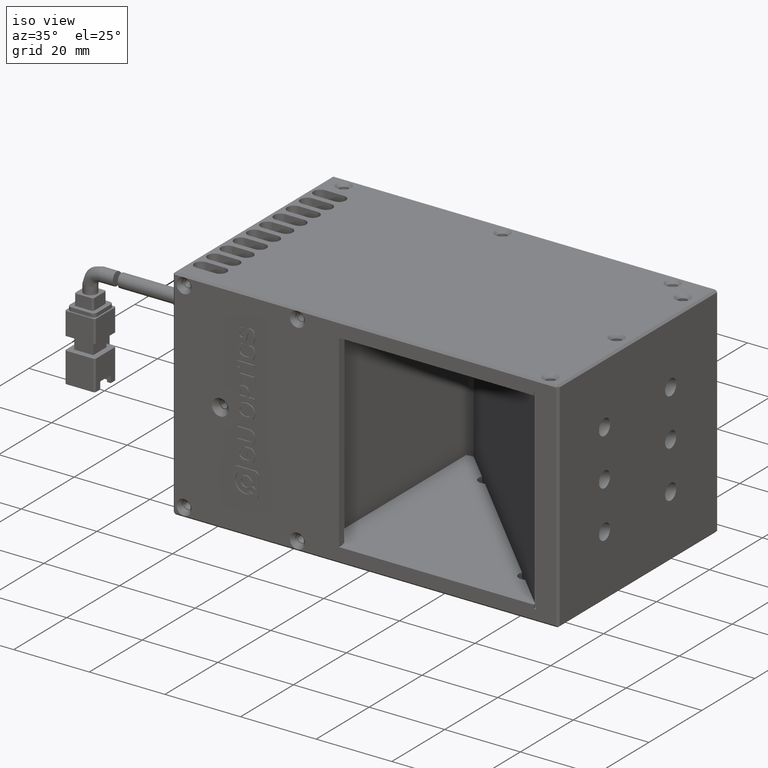
[diagram: clean part render]
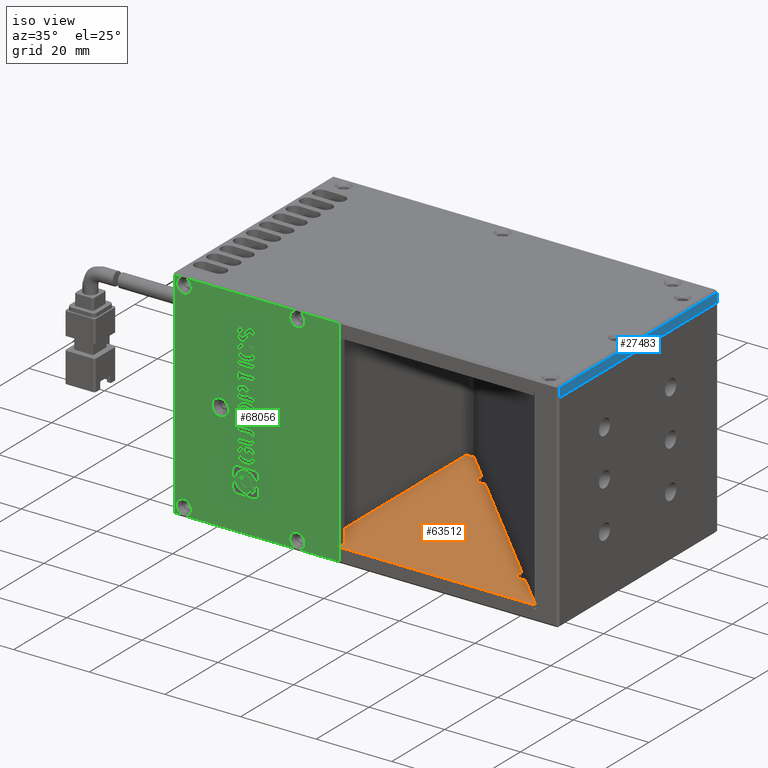
[diagram: same view with three faces highlighted in distinct colors, each labeled with its STEP entity id]
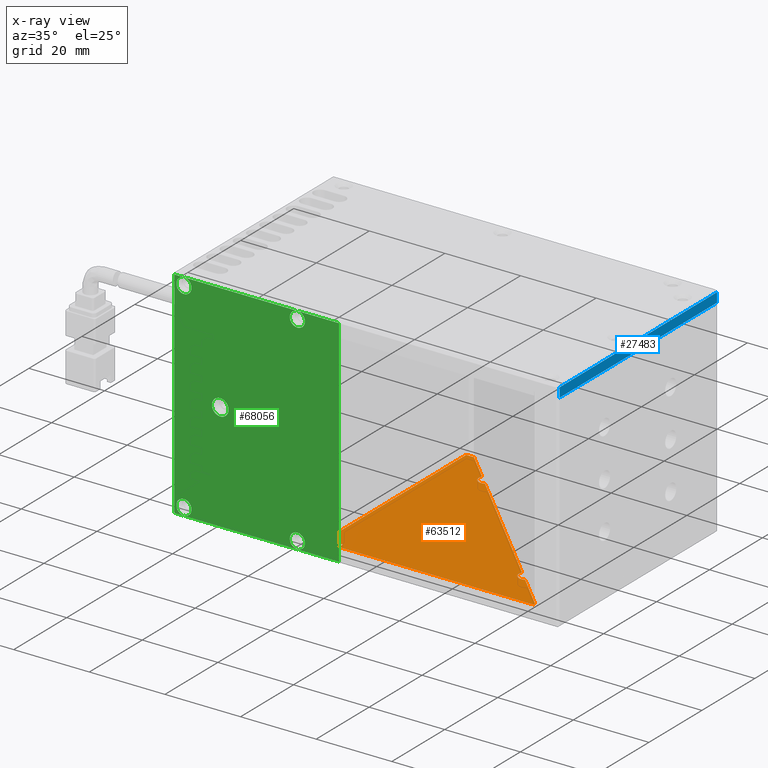
[diagram: x-ray of the same camera — body ghosted, the three highlighted faces saturated]
A machine part, iso view with three faces highlighted in distinct colors.
The next image is the same camera in x-ray (body ghosted, the three faces saturated) — at least one of them is partly hidden behind the body in this view.
Their STEP definitions:

[orange] entity #63512 — the highlighted planar face has unit normal (0, -0, 1).
#81 = CARTESIAN_POINT ( 'NONE',  ( -18.15268731930642300, 38.81505083406882100, 4.000000000009549700 ) ) ;
#1310 = CARTESIAN_POINT ( 'NONE',  ( -24.57424922391152200, -6.223006669097354200, 4.000000000009549700 ) ) ;
#1754 = VECTOR ( 'NONE', #23965, 1000.000000000000000 ) ;
#2324 = CARTESIAN_POINT ( 'NONE',  ( 18.08047391975925000, 1.662650779460662600, 4.000000000009549700 ) ) ;
#3220 = CIRCLE ( 'NONE', #67709, 2.000000000000001800 ) ;
#3385 = ORIENTED_EDGE ( 'NONE', *, *, #8513, .T. ) ;
#3423 = LINE ( 'NONE', #18607, #1754 ) ;
#3480 = EDGE_CURVE ( 'NONE', #45093, #49068, #64363, .T. ) ;
#3933 = AXIS2_PLACEMENT_3D ( 'NONE', #15642, #52663, #21034 ) ;
#4162 = VECTOR ( 'NONE', #27052, 1000.000000000000000 ) ;
#4756 = CARTESIAN_POINT ( 'NONE',  ( 15.20265174002096100, 3.459711774741443900, 4.000000000009549700 ) ) ;
#5496 = DIRECTION ( 'NONE',  ( 1.000000000000000000, 6.938893903907222100E-015, 0.0000000000000000000 ) ) ;
#6100 = LINE ( 'NONE', #45755, #48351 ) ;
#6648 = ORIENTED_EDGE ( 'NONE', *, *, #51875, .T. ) ;
#6997 = VERTEX_POINT ( 'NONE', #53465 ) ;
#8211 = VERTEX_POINT ( 'NONE', #1310 ) ;
#8252 = DIRECTION ( 'NONE',  ( 0.0000000000000000000, 0.0000000000000000000, -1.000000000000000000 ) ) ;
#8513 = EDGE_CURVE ( 'NONE', #36693, #27778, #46453, .T. ) ;
#8966 = LINE ( 'NONE', #21065, #24799 ) ;
#10519 = DIRECTION ( 'NONE',  ( -0.7071067811865454600, 0.7071067811865496800, 0.0000000000000000000 ) ) ;
#14923 = ORIENTED_EDGE ( 'NONE', *, *, #50053, .T. ) ;
#15133 = VERTEX_POINT ( 'NONE', #65577 ) ;
#15642 = CARTESIAN_POINT ( 'NONE',  ( -18.15268731930642300, 38.81505083406882100, 4.000000000009549700 ) ) ;
#16168 = ORIENTED_EDGE ( 'NONE', *, *, #23784, .T. ) ;
#16613 = CARTESIAN_POINT ( 'NONE',  ( -24.57424922391152200, -7.723006669097355100, 4.000000000009549700 ) ) ;
#16927 = EDGE_LOOP ( 'NONE', ( #16168, #6648, #53080, #53734, #57910, #35306, #27091, #49482, #19044, #37279, #14923, #24170, #3385 ) ) ;
#18607 = CARTESIAN_POINT ( 'NONE',  ( 33.42575077608847800, -7.723006669097348000, 4.000000000009549700 ) ) ;
#18696 = PLANE ( 'NONE',  #56542 ) ;
#18940 = DIRECTION ( 'NONE',  ( 0.0000000000000000000, -0.0000000000000000000, 1.000000000000000000 ) ) ;
#19044 = ORIENTED_EDGE ( 'NONE', *, *, #49851, .T. ) ;
#19957 = VERTEX_POINT ( 'NONE', #39969 ) ;
#20174 = LINE ( 'NONE', #36931, #34251 ) ;
#20233 = LINE ( 'NONE', #34900, #60760 ) ;
#20976 = AXIS2_PLACEMENT_3D ( 'NONE', #23070, #60029, #28334 ) ;
#21034 = DIRECTION ( 'NONE',  ( 1.000000000000000000, 0.0000000000000000000, 0.0000000000000000000 ) ) ;
#21065 = CARTESIAN_POINT ( 'NONE',  ( 33.42575077608847800, 46.77599333090265100, 4.000000000009549700 ) ) ;
#21727 = CARTESIAN_POINT ( 'NONE',  ( 26.92575077608848500, 52.77699333090263400, 4.000000000009549700 ) ) ;
#22184 = VERTEX_POINT ( 'NONE', #38707 ) ;
#23070 = CARTESIAN_POINT ( 'NONE',  ( 17.20265174002096100, 3.459711774741443400, 4.000000000009549700 ) ) ;
#23781 = VECTOR ( 'NONE', #55002, 1000.000000000000000 ) ;
#23784 = EDGE_CURVE ( 'NONE', #27778, #51965, #25433, .T. ) ;
#23965 = DIRECTION ( 'NONE',  ( 1.000000000000000000, 1.224646799147353500E-016, -0.0000000000000000000 ) ) ;
#24170 = ORIENTED_EDGE ( 'NONE', *, *, #62632, .T. ) ;
#24799 = VECTOR ( 'NONE', #37004, 1000.000000000000000 ) ;
#25433 = LINE ( 'NONE', #39062, #23781 ) ;
#25677 = AXIS2_PLACEMENT_3D ( 'NONE', #39988, #8252, #45302 ) ;
#27052 = DIRECTION ( 'NONE',  ( 0.0000000000000000000, 1.000000000000000000, 0.0000000000000000000 ) ) ;
#27091 = ORIENTED_EDGE ( 'NONE', *, *, #43271, .T. ) ;
#27778 = VERTEX_POINT ( 'NONE', #58133 ) ;
#28334 = DIRECTION ( 'NONE',  ( 1.000000000000000000, 0.0000000000000000000, 0.0000000000000000000 ) ) ;
#28382 = FACE_OUTER_BOUND ( 'NONE', #16927, .T. ) ;
#30027 = DIRECTION ( 'NONE',  ( -0.0000000000000000000, -1.000000000000000000, -0.0000000000000000000 ) ) ;
#30513 = CARTESIAN_POINT ( 'NONE',  ( -79.77142641557888700, -6.223006669097361300, 4.000000000009549700 ) ) ;
#31451 = EDGE_CURVE ( 'NONE', #40228, #19957, #8966, .T. ) ;
#34251 = VECTOR ( 'NONE', #68600, 1000.000000000000000 ) ;
#34900 = CARTESIAN_POINT ( 'NONE',  ( 15.40559074474019700, 4.337533954479746400, 4.000000000009549700 ) ) ;
#35003 = LINE ( 'NONE', #30513, #45753 ) ;
#35079 = CARTESIAN_POINT ( 'NONE',  ( -29.07424922391151900, -6.223006669097353300, 4.000000000009549700 ) ) ;
#35306 = ORIENTED_EDGE ( 'NONE', *, *, #64150, .T. ) ;
#35888 = EDGE_CURVE ( 'NONE', #15133, #22184, #38446, .T. ) ;
#36219 = CIRCLE ( 'NONE', #20976, 2.000000000000001800 ) ;
#36242 = VERTEX_POINT ( 'NONE', #35079 ) ;
#36693 = VERTEX_POINT ( 'NONE', #50235 ) ;
#36931 = CARTESIAN_POINT ( 'NONE',  ( -24.57424922391152200, 52.77699333090263400, 4.000000000009549700 ) ) ;
#37004 = DIRECTION ( 'NONE',  ( -1.000000000000000000, -0.0000000000000000000, 0.0000000000000000000 ) ) ;
#37251 = DIRECTION ( 'NONE',  ( 0.0000000000000000000, 0.0000000000000000000, -1.000000000000000000 ) ) ;
#37279 = ORIENTED_EDGE ( 'NONE', *, *, #67605, .F. ) ;
#38446 = CIRCLE ( 'NONE', #3933, 2.000000000000001800 ) ;
#38707 = CARTESIAN_POINT ( 'NONE',  ( -20.15268731930642300, 38.81505083406882100, 4.000000000009549700 ) ) ;
#39062 = CARTESIAN_POINT ( 'NONE',  ( 26.92575077608849200, -7.182626076868644700, 4.000000000009549700 ) ) ;
#39825 = CARTESIAN_POINT ( 'NONE',  ( -27.03286863168244400, 46.77599333090265100, 4.000000000009549700 ) ) ;
#39969 = CARTESIAN_POINT ( 'NONE',  ( -29.07424922391152600, 46.77599333090264400, 4.000000000009549700 ) ) ;
#39988 = CARTESIAN_POINT ( 'NONE',  ( 17.20265174002096100, 3.459711774741443400, 4.000000000009549700 ) ) ;
#40228 = VERTEX_POINT ( 'NONE', #39825 ) ;
#41425 = VERTEX_POINT ( 'NONE', #16613 ) ;
#42257 = CARTESIAN_POINT ( 'NONE',  ( -19.94974831458710400, 39.69287301380727900, 4.000000000009549700 ) ) ;
#43271 = EDGE_CURVE ( 'NONE', #6997, #40228, #63548, .T. ) ;
#45093 = VERTEX_POINT ( 'NONE', #4756 ) ;
#45302 = DIRECTION ( 'NONE',  ( 1.000000000000000000, 3.469446951953611000E-015, 0.0000000000000000000 ) ) ;
#45753 = VECTOR ( 'NONE', #67485, 1000.000000000000000 ) ;
#45755 = CARTESIAN_POINT ( 'NONE',  ( -29.07424922391152600, 52.77699333090263400, 4.000000000009549700 ) ) ;
#46453 = LINE ( 'NONE', #21727, #4162 ) ;
#48351 = VECTOR ( 'NONE', #30027, 1000.000000000000000 ) ;
#49068 = VERTEX_POINT ( 'NONE', #60847 ) ;
#49482 = ORIENTED_EDGE ( 'NONE', *, *, #31451, .T. ) ;
#49850 = EDGE_CURVE ( 'NONE', #49068, #15133, #20233, .T. ) ;
#49851 = EDGE_CURVE ( 'NONE', #19957, #36242, #6100, .T. ) ;
#50053 = EDGE_CURVE ( 'NONE', #8211, #41425, #20174, .T. ) ;
#50235 = CARTESIAN_POINT ( 'NONE',  ( 26.92575077608848500, -7.723006669097355100, 4.000000000009549700 ) ) ;
#50573 = CARTESIAN_POINT ( 'NONE',  ( 33.42575077608847800, 52.77699333090263400, 4.000000000009549700 ) ) ;
#51875 = EDGE_CURVE ( 'NONE', #51965, #45093, #36219, .T. ) ;
#51965 = VERTEX_POINT ( 'NONE', #2324 ) ;
#52663 = DIRECTION ( 'NONE',  ( 0.0000000000000000000, 0.0000000000000000000, -1.000000000000000000 ) ) ;
#53080 = ORIENTED_EDGE ( 'NONE', *, *, #3480, .T. ) ;
#53465 = CARTESIAN_POINT ( 'NONE',  ( -19.94974831458710800, 39.69287301380727900, 4.000000000009549700 ) ) ;
#53734 = ORIENTED_EDGE ( 'NONE', *, *, #49850, .T. ) ;
#55002 = DIRECTION ( 'NONE',  ( -0.7071067811865444600, 0.7071067811865505700, 0.0000000000000000000 ) ) ;
#55894 = DIRECTION ( 'NONE',  ( 1.000000000000000000, 0.0000000000000000000, -0.0000000000000000000 ) ) ;
#56344 = DIRECTION ( 'NONE',  ( -0.7071067811865452400, 0.7071067811865499000, 0.0000000000000000000 ) ) ;
#56542 = AXIS2_PLACEMENT_3D ( 'NONE', #50573, #18940, #55894 ) ;
#57910 = ORIENTED_EDGE ( 'NONE', *, *, #35888, .T. ) ;
#58133 = CARTESIAN_POINT ( 'NONE',  ( 26.92575077608848500, -7.182626076868646500, 4.000000000009549700 ) ) ;
#60029 = DIRECTION ( 'NONE',  ( 0.0000000000000000000, 0.0000000000000000000, -1.000000000000000000 ) ) ;
#60760 = VECTOR ( 'NONE', #56344, 1000.000000000000100 ) ;
#60847 = CARTESIAN_POINT ( 'NONE',  ( 15.40559074474020000, 4.337533954479732200, 4.000000000009549700 ) ) ;
#61917 = VECTOR ( 'NONE', #10519, 1000.000000000000100 ) ;
#62632 = EDGE_CURVE ( 'NONE', #41425, #36693, #3423, .T. ) ;
#63512 = ADVANCED_FACE ( 'NONE', ( #28382 ), #18696, .T. ) ;
#63548 = LINE ( 'NONE', #42257, #61917 ) ;
#64150 = EDGE_CURVE ( 'NONE', #22184, #6997, #3220, .T. ) ;
#64363 = CIRCLE ( 'NONE', #25677, 2.000000000000001800 ) ;
#65577 = CARTESIAN_POINT ( 'NONE',  ( -17.27486513956796800, 37.01798983878812500, 4.000000000009549700 ) ) ;
#67485 = DIRECTION ( 'NONE',  ( -1.000000000000000000, -1.224646799147353200E-016, -0.0000000000000000000 ) ) ;
#67605 = EDGE_CURVE ( 'NONE', #8211, #36242, #35003, .T. ) ;
#67709 = AXIS2_PLACEMENT_3D ( 'NONE', #81, #37251, #5496 ) ;
#68600 = DIRECTION ( 'NONE',  ( -0.0000000000000000000, -1.000000000000000000, -0.0000000000000000000 ) ) ;

[blue] entity #27483 — the highlighted planar face has unit normal (-1, 0, 0).
#2129 = PLANE ( 'NONE',  #56341 ) ;
#2366 = DIRECTION ( 'NONE',  ( -1.000000000000000000, 0.0000000000000000000, 0.0000000000000000000 ) ) ;
#2547 = CARTESIAN_POINT ( 'NONE',  ( 33.42575077608847800, 52.27699333090263400, 54.00000000000955700 ) ) ;
#2601 = CARTESIAN_POINT ( 'NONE',  ( 33.42575077608847800, -7.723006669097348000, 57.50000000000955700 ) ) ;
#5379 = EDGE_CURVE ( 'NONE', #32669, #42572, #41406, .T. ) ;
#5518 = LINE ( 'NONE', #33296, #32057 ) ;
#7904 = DIRECTION ( 'NONE',  ( -0.0000000000000000000, -0.0000000000000000000, -1.000000000000000000 ) ) ;
#14753 = VERTEX_POINT ( 'NONE', #47419 ) ;
#15292 = VERTEX_POINT ( 'NONE', #51429 ) ;
#19498 = CARTESIAN_POINT ( 'NONE',  ( 33.42575077608847800, -7.223006669097347100, 57.50000000000955700 ) ) ;
#24405 = EDGE_CURVE ( 'NONE', #32669, #15292, #43484, .T. ) ;
#24551 = FACE_OUTER_BOUND ( 'NONE', #40802, .T. ) ;
#25881 = CARTESIAN_POINT ( 'NONE',  ( 33.42575077608847800, -7.723006669097348000, 55.00000000000955700 ) ) ;
#27265 = EDGE_CURVE ( 'NONE', #15292, #14753, #38208, .T. ) ;
#27483 = ADVANCED_FACE ( 'NONE', ( #24551 ), #2129, .F. ) ;
#31254 = ORIENTED_EDGE ( 'NONE', *, *, #24405, .F. ) ;
#31726 = ORIENTED_EDGE ( 'NONE', *, *, #5379, .T. ) ;
#32057 = VECTOR ( 'NONE', #54069, 1000.000000000000000 ) ;
#32669 = VERTEX_POINT ( 'NONE', #63035 ) ;
#33296 = CARTESIAN_POINT ( 'NONE',  ( 33.42575077608847800, -7.223006669097346200, 54.00000000000955700 ) ) ;
#34174 = CARTESIAN_POINT ( 'NONE',  ( 33.42575077608847800, -7.723006669097348000, 54.00000000000955700 ) ) ;
#38208 = LINE ( 'NONE', #25881, #62979 ) ;
#39473 = DIRECTION ( 'NONE',  ( 0.0000000000000000000, 0.0000000000000000000, 1.000000000000000000 ) ) ;
#39933 = DIRECTION ( 'NONE',  ( -0.0000000000000000000, -1.000000000000000000, -0.0000000000000000000 ) ) ;
#40802 = EDGE_LOOP ( 'NONE', ( #31254, #31726, #66640, #52112 ) ) ;
#41406 = LINE ( 'NONE', #2601, #52144 ) ;
#41768 = DIRECTION ( 'NONE',  ( -0.0000000000000000000, -1.000000000000000000, 0.0000000000000000000 ) ) ;
#41839 = VECTOR ( 'NONE', #7904, 1000.000000000000000 ) ;
#42572 = VERTEX_POINT ( 'NONE', #19498 ) ;
#43484 = LINE ( 'NONE', #2547, #41839 ) ;
#47419 = CARTESIAN_POINT ( 'NONE',  ( 33.42575077608847800, -7.223006669097347100, 55.00000000000955700 ) ) ;
#51429 = CARTESIAN_POINT ( 'NONE',  ( 33.42575077608847800, 52.27699333090263400, 55.00000000000955700 ) ) ;
#52112 = ORIENTED_EDGE ( 'NONE', *, *, #27265, .F. ) ;
#52144 = VECTOR ( 'NONE', #39933, 1000.000000000000000 ) ;
#54069 = DIRECTION ( 'NONE',  ( 0.0000000000000000000, 0.0000000000000000000, 1.000000000000000000 ) ) ;
#56341 = AXIS2_PLACEMENT_3D ( 'NONE', #34174, #2366, #39473 ) ;
#62979 = VECTOR ( 'NONE', #41768, 1000.000000000000000 ) ;
#63035 = CARTESIAN_POINT ( 'NONE',  ( 33.42575077608847800, 52.27699333090264800, 57.50000000000955700 ) ) ;
#66078 = EDGE_CURVE ( 'NONE', #14753, #42572, #5518, .T. ) ;
#66640 = ORIENTED_EDGE ( 'NONE', *, *, #66078, .F. ) ;

[green] entity #68056 — the highlighted planar face has unit normal (0, -1, 0).
#63 = VERTEX_POINT ( 'NONE', #24220 ) ;
#636 = EDGE_LOOP ( 'NONE', ( #18166, #43907 ) ) ;
#683 = CARTESIAN_POINT ( 'NONE',  ( -24.57424922391151200, -7.723006669097353300, 58.00000000000954300 ) ) ;
#1084 = DIRECTION ( 'NONE',  ( -1.196391117533724800E-016, 1.000000000000000000, -2.687133370730801500E-017 ) ) ;
#1331 = VERTEX_POINT ( 'NONE', #20501 ) ;
#2772 = CIRCLE ( 'NONE', #55978, 1.999999999975299300 ) ;
#3605 = CIRCLE ( 'NONE', #6993, 1.999999999972572400 ) ;
#3709 = CARTESIAN_POINT ( 'NONE',  ( -68.07424922391152200, -7.723006669097358700, 58.00000000000955000 ) ) ;
#5285 = CIRCLE ( 'NONE', #33441, 1.999999999975299300 ) ;
#5864 = EDGE_CURVE ( 'NONE', #53723, #11119, #48792, .T. ) ;
#5961 = EDGE_CURVE ( 'NONE', #12346, #58297, #28085, .T. ) ;
#5970 = ORIENTED_EDGE ( 'NONE', *, *, #22068, .T. ) ;
#6993 = AXIS2_PLACEMENT_3D ( 'NONE', #23429, #60388, #28665 ) ;
#7460 = FACE_OUTER_BOUND ( 'NONE', #41204, .T. ) ;
#8412 = PLANE ( 'NONE',  #21147 ) ;
#8602 = CARTESIAN_POINT ( 'NONE',  ( -35.57424922391150100, -7.723006669163748200, 55.50000000000954300 ) ) ;
#8833 = DIRECTION ( 'NONE',  ( -7.632783294297951200E-017, -2.687133370730802500E-017, -1.000000000000000000 ) ) ;
#9068 = CARTESIAN_POINT ( 'NONE',  ( -35.57424922391150800, -7.723006669106906600, 0.5000000000342439400 ) ) ;
#9114 = FACE_BOUND ( 'NONE', #44595, .T. ) ;
#10331 = EDGE_CURVE ( 'NONE', #58297, #12346, #60715, .T. ) ;
#10408 = ORIENTED_EDGE ( 'NONE', *, *, #52278, .T. ) ;
#10994 = EDGE_CURVE ( 'NONE', #63, #47165, #40912, .T. ) ;
#11119 = VERTEX_POINT ( 'NONE', #14196 ) ;
#11759 = VECTOR ( 'NONE', #19442, 1000.000000000000000 ) ;
#12227 = DIRECTION ( 'NONE',  ( -1.196391117533724800E-016, 1.000000000000000000, -2.687133370730801500E-017 ) ) ;
#12346 = VERTEX_POINT ( 'NONE', #9068 ) ;
#12525 = ORIENTED_EDGE ( 'NONE', *, *, #52379, .T. ) ;
#12980 = CIRCLE ( 'NONE', #47798, 1.999999999972572400 ) ;
#13051 = CARTESIAN_POINT ( 'NONE',  ( -35.57424922391150100, -7.723006669163748200, 55.50000000000954300 ) ) ;
#13283 = DIRECTION ( 'NONE',  ( -1.196391117533724800E-016, 1.000000000000000000, -2.687133370730801500E-017 ) ) ;
#13915 = DIRECTION ( 'NONE',  ( 0.0000000000000000000, 0.0000000000000000000, 1.000000000000000000 ) ) ;
#13925 = EDGE_CURVE ( 'NONE', #47165, #63, #60782, .T. ) ;
#13945 = CARTESIAN_POINT ( 'NONE',  ( -68.57424922391150800, -7.723006669097358700, 58.00000000000955000 ) ) ;
#13988 = EDGE_CURVE ( 'NONE', #61561, #53723, #16871, .T. ) ;
#14196 = CARTESIAN_POINT ( 'NONE',  ( -24.57424922391151500, -7.723006669097355100, 0.5000000000095344800 ) ) ;
#14584 = ORIENTED_EDGE ( 'NONE', *, *, #5864, .T. ) ;
#14974 = ORIENTED_EDGE ( 'NONE', *, *, #13988, .T. ) ;
#15063 = AXIS2_PLACEMENT_3D ( 'NONE', #59444, #27735, #64737 ) ;
#16871 = LINE ( 'NONE', #3709, #30975 ) ;
#16914 = VERTEX_POINT ( 'NONE', #57903 ) ;
#18166 = ORIENTED_EDGE ( 'NONE', *, *, #10994, .T. ) ;
#18442 = DIRECTION ( 'NONE',  ( 0.0000000000000000000, 0.0000000000000000000, 1.000000000000000000 ) ) ;
#19364 = DIRECTION ( 'NONE',  ( 7.632783294297951200E-017, 2.687133370730802500E-017, 1.000000000000000000 ) ) ;
#19442 = DIRECTION ( 'NONE',  ( -1.000000000000000000, -1.196391117533724800E-016, 7.632783294297951200E-017 ) ) ;
#19771 = CARTESIAN_POINT ( 'NONE',  ( -55.97424922391153500, -7.723006669050064900, 29.00000000000953500 ) ) ;
#19865 = CARTESIAN_POINT ( 'NONE',  ( -65.57424922391152200, -7.723006669106910100, 0.5000000000342508200 ) ) ;
#20420 = CARTESIAN_POINT ( 'NONE',  ( -55.97424922391153500, -7.723006669050064900, 31.19999999993327900 ) ) ;
#20501 = CARTESIAN_POINT ( 'NONE',  ( -55.97424922391153500, -7.723006669050064900, 26.80000000008579200 ) ) ;
#21147 = AXIS2_PLACEMENT_3D ( 'NONE', #13945, #50992, #19364 ) ;
#21601 = CARTESIAN_POINT ( 'NONE',  ( -68.07424922391152200, -7.723006669097360400, 0.5000000000095414800 ) ) ;
#21606 = FACE_BOUND ( 'NONE', #636, .T. ) ;
#22068 = EDGE_CURVE ( 'NONE', #11119, #65447, #52358, .T. ) ;
#23429 = CARTESIAN_POINT ( 'NONE',  ( -65.57424922391150800, -7.723006669163751800, 55.50000000000955000 ) ) ;
#23498 = DIRECTION ( 'NONE',  ( 1.000000000000000000, 1.196391117533724800E-016, -7.632783294297951200E-017 ) ) ;
#23713 = EDGE_CURVE ( 'NONE', #36909, #1331, #38663, .T. ) ;
#24220 = CARTESIAN_POINT ( 'NONE',  ( -35.57424922391150100, -7.723006669163748200, 57.49999999998211600 ) ) ;
#25092 = DIRECTION ( 'NONE',  ( 0.0000000000000000000, 0.0000000000000000000, 1.000000000000000000 ) ) ;
#25465 = ORIENTED_EDGE ( 'NONE', *, *, #10331, .T. ) ;
#25623 = ORIENTED_EDGE ( 'NONE', *, *, #62732, .T. ) ;
#25927 = LINE ( 'NONE', #35151, #11759 ) ;
#27372 = DIRECTION ( 'NONE',  ( -1.196391117533724800E-016, 1.000000000000000000, -2.687133370730801500E-017 ) ) ;
#27407 = EDGE_LOOP ( 'NONE', ( #57055, #25623 ) ) ;
#27735 = DIRECTION ( 'NONE',  ( -1.196391117533724800E-016, 1.000000000000000000, -2.687133370730801500E-017 ) ) ;
#27758 = DIRECTION ( 'NONE',  ( -1.196391117533724800E-016, 1.000000000000000000, -2.687133370730801500E-017 ) ) ;
#28085 = CIRCLE ( 'NONE', #41878, 1.999999999975299300 ) ;
#28234 = AXIS2_PLACEMENT_3D ( 'NONE', #13051, #50116, #18442 ) ;
#28665 = DIRECTION ( 'NONE',  ( 0.0000000000000000000, 0.0000000000000000000, 1.000000000000000000 ) ) ;
#30141 = EDGE_CURVE ( 'NONE', #38052, #59326, #12980, .T. ) ;
#30318 = VERTEX_POINT ( 'NONE', #19865 ) ;
#30975 = VECTOR ( 'NONE', #8833, 1000.000000000000000 ) ;
#31382 = ORIENTED_EDGE ( 'NONE', *, *, #30141, .T. ) ;
#31406 = CARTESIAN_POINT ( 'NONE',  ( -65.57424922391150800, -7.723006669163751800, 57.49999999998212300 ) ) ;
#32494 = DIRECTION ( 'NONE',  ( 7.632783294297951200E-017, 2.687133370730802500E-017, 1.000000000000000000 ) ) ;
#32907 = CARTESIAN_POINT ( 'NONE',  ( -35.57424922391150800, -7.723006669106906600, 2.500000000009543000 ) ) ;
#33441 = AXIS2_PLACEMENT_3D ( 'NONE', #43934, #12227, #49277 ) ;
#33924 = AXIS2_PLACEMENT_3D ( 'NONE', #19771, #56699, #25092 ) ;
#34749 = CARTESIAN_POINT ( 'NONE',  ( -68.07424922391150800, -7.723006669097360400, 57.50000000000955700 ) ) ;
#34750 = VECTOR ( 'NONE', #23498, 1000.000000000000000 ) ;
#35151 = CARTESIAN_POINT ( 'NONE',  ( -68.57424922391150800, -7.723006669097358700, 57.50000000000955700 ) ) ;
#35661 = FACE_BOUND ( 'NONE', #42488, .T. ) ;
#36909 = VERTEX_POINT ( 'NONE', #20420 ) ;
#37732 = CARTESIAN_POINT ( 'NONE',  ( -65.57424922391150800, -7.723006669163751800, 53.50000000003697700 ) ) ;
#38052 = VERTEX_POINT ( 'NONE', #37732 ) ;
#38214 = DIRECTION ( 'NONE',  ( 0.0000000000000000000, 0.0000000000000000000, 1.000000000000000000 ) ) ;
#38663 = CIRCLE ( 'NONE', #15063, 2.199999999923742100 ) ;
#39670 = ORIENTED_EDGE ( 'NONE', *, *, #55029, .T. ) ;
#40912 = CIRCLE ( 'NONE', #28234, 1.999999999972572400 ) ;
#41204 = EDGE_LOOP ( 'NONE', ( #14584, #5970, #59262, #14974 ) ) ;
#41878 = AXIS2_PLACEMENT_3D ( 'NONE', #59472, #27758, #64766 ) ;
#42488 = EDGE_LOOP ( 'NONE', ( #25465, #61925 ) ) ;
#43907 = ORIENTED_EDGE ( 'NONE', *, *, #13925, .T. ) ;
#43934 = CARTESIAN_POINT ( 'NONE',  ( -65.57424922391152200, -7.723006669106910100, 2.500000000009550100 ) ) ;
#44595 = EDGE_LOOP ( 'NONE', ( #39670, #31382 ) ) ;
#45028 = CARTESIAN_POINT ( 'NONE',  ( -65.57424922391150800, -7.723006669163751800, 55.50000000000955000 ) ) ;
#45695 = DIRECTION ( 'NONE',  ( -1.196391117533724800E-016, 1.000000000000000000, -2.687133370730801500E-017 ) ) ;
#47165 = VERTEX_POINT ( 'NONE', #60579 ) ;
#47798 = AXIS2_PLACEMENT_3D ( 'NONE', #45028, #13283, #50334 ) ;
#48792 = LINE ( 'NONE', #60461, #34750 ) ;
#49277 = DIRECTION ( 'NONE',  ( 0.0000000000000000000, 0.0000000000000000000, 1.000000000000000000 ) ) ;
#49723 = FACE_BOUND ( 'NONE', #53267, .T. ) ;
#50116 = DIRECTION ( 'NONE',  ( -1.196391117533724800E-016, 1.000000000000000000, -2.687133370730801500E-017 ) ) ;
#50334 = DIRECTION ( 'NONE',  ( 0.0000000000000000000, 0.0000000000000000000, 1.000000000000000000 ) ) ;
#50992 = DIRECTION ( 'NONE',  ( 1.196391117533724800E-016, -1.000000000000000000, 2.687133370730801500E-017 ) ) ;
#51080 = AXIS2_PLACEMENT_3D ( 'NONE', #8602, #45695, #13915 ) ;
#52278 = EDGE_CURVE ( 'NONE', #16914, #30318, #2772, .T. ) ;
#52358 = LINE ( 'NONE', #683, #66436 ) ;
#52379 = EDGE_CURVE ( 'NONE', #30318, #16914, #5285, .T. ) ;
#53267 = EDGE_LOOP ( 'NONE', ( #10408, #12525 ) ) ;
#53723 = VERTEX_POINT ( 'NONE', #21601 ) ;
#55029 = EDGE_CURVE ( 'NONE', #59326, #38052, #3605, .T. ) ;
#55978 = AXIS2_PLACEMENT_3D ( 'NONE', #59037, #27372, #64317 ) ;
#56699 = DIRECTION ( 'NONE',  ( -1.196391117533724800E-016, 1.000000000000000000, -2.687133370730801500E-017 ) ) ;
#57055 = ORIENTED_EDGE ( 'NONE', *, *, #23713, .T. ) ;
#57903 = CARTESIAN_POINT ( 'NONE',  ( -65.57424922391152200, -7.723006669106910100, 4.499999999984849500 ) ) ;
#58297 = VERTEX_POINT ( 'NONE', #59592 ) ;
#59037 = CARTESIAN_POINT ( 'NONE',  ( -65.57424922391152200, -7.723006669106910100, 2.500000000009550100 ) ) ;
#59262 = ORIENTED_EDGE ( 'NONE', *, *, #67516, .T. ) ;
#59326 = VERTEX_POINT ( 'NONE', #31406 ) ;
#59444 = CARTESIAN_POINT ( 'NONE',  ( -55.97424922391153500, -7.723006669050064900, 29.00000000000953500 ) ) ;
#59472 = CARTESIAN_POINT ( 'NONE',  ( -35.57424922391150800, -7.723006669106906600, 2.500000000009543000 ) ) ;
#59592 = CARTESIAN_POINT ( 'NONE',  ( -35.57424922391150800, -7.723006669106906600, 4.499999999984842300 ) ) ;
#60388 = DIRECTION ( 'NONE',  ( -1.196391117533724800E-016, 1.000000000000000000, -2.687133370730801500E-017 ) ) ;
#60461 = CARTESIAN_POINT ( 'NONE',  ( -68.57424922391152200, -7.723006669097360400, 0.5000000000095414800 ) ) ;
#60579 = CARTESIAN_POINT ( 'NONE',  ( -35.57424922391150100, -7.723006669163748200, 53.50000000003697000 ) ) ;
#60715 = CIRCLE ( 'NONE', #64514, 1.999999999975299300 ) ;
#60782 = CIRCLE ( 'NONE', #51080, 1.999999999972572400 ) ;
#61561 = VERTEX_POINT ( 'NONE', #34749 ) ;
#61925 = ORIENTED_EDGE ( 'NONE', *, *, #5961, .T. ) ;
#62116 = FACE_BOUND ( 'NONE', #27407, .T. ) ;
#62732 = EDGE_CURVE ( 'NONE', #1331, #36909, #66336, .T. ) ;
#64317 = DIRECTION ( 'NONE',  ( 0.0000000000000000000, 0.0000000000000000000, 1.000000000000000000 ) ) ;
#64514 = AXIS2_PLACEMENT_3D ( 'NONE', #32907, #1084, #38214 ) ;
#64570 = CARTESIAN_POINT ( 'NONE',  ( -24.57424922391151500, -7.723006669097353300, 57.50000000000955000 ) ) ;
#64737 = DIRECTION ( 'NONE',  ( 0.0000000000000000000, 0.0000000000000000000, 1.000000000000000000 ) ) ;
#64766 = DIRECTION ( 'NONE',  ( 0.0000000000000000000, 0.0000000000000000000, 1.000000000000000000 ) ) ;
#65447 = VERTEX_POINT ( 'NONE', #64570 ) ;
#66336 = CIRCLE ( 'NONE', #33924, 2.199999999923742100 ) ;
#66436 = VECTOR ( 'NONE', #32494, 1000.000000000000000 ) ;
#67516 = EDGE_CURVE ( 'NONE', #65447, #61561, #25927, .T. ) ;
#68056 = ADVANCED_FACE ( 'NONE', ( #35661, #49723, #9114, #21606, #7460, #62116 ), #8412, .T. ) ;